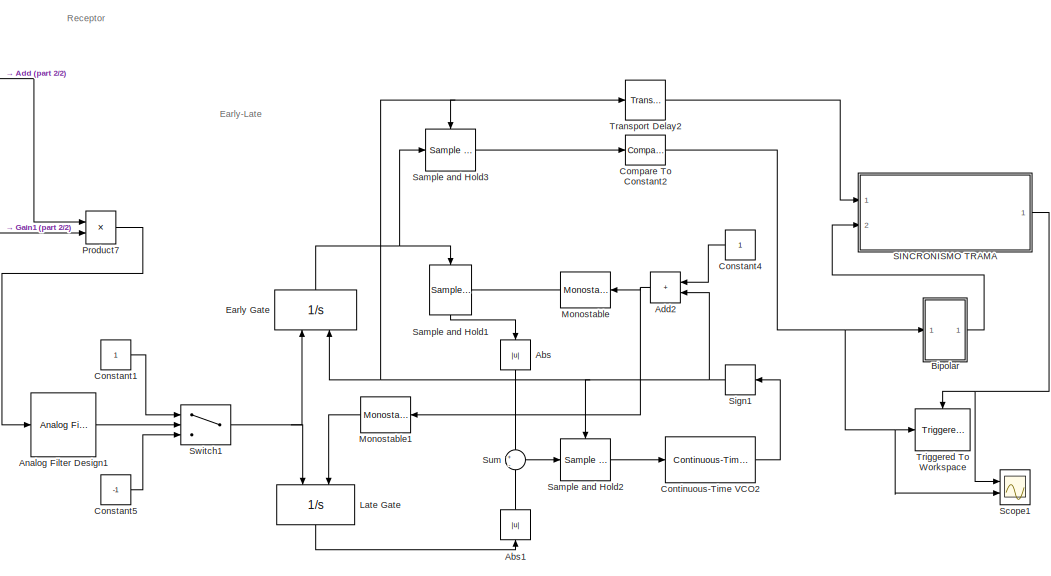
[diagram: root canvas - part 1/2, right side, full height]
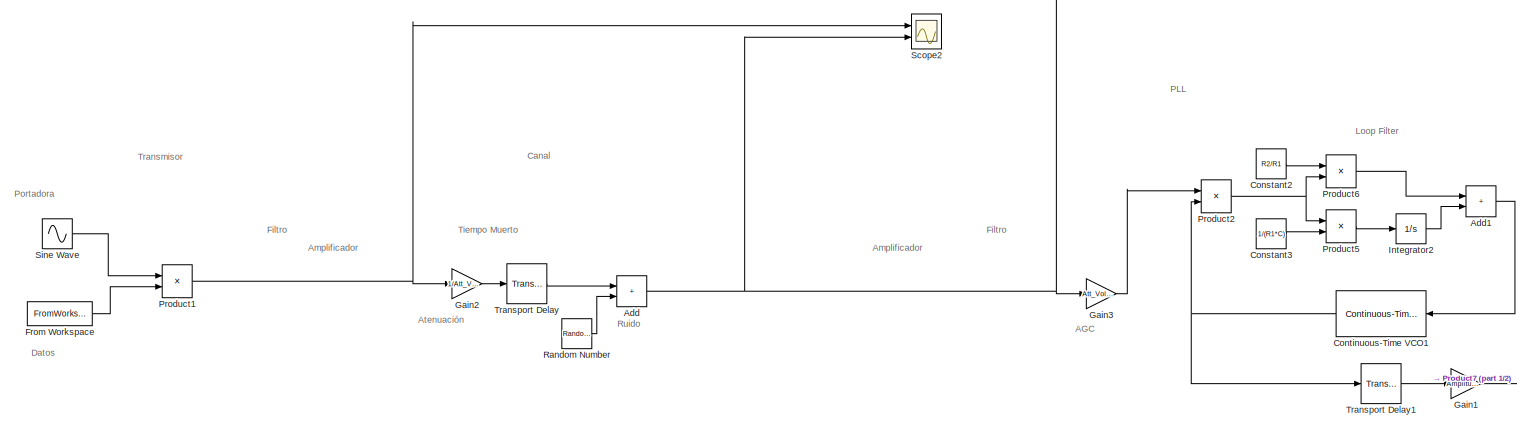
[diagram: root canvas - part 2/2, middle left region]
MODEL slx_01e79e3faf39
KIND model
CONFIG AbsTol = auto
CONFIG EnableMultiTasking = off
CONFIG FixedStep = auto
CONFIG MaxStep = 1e-8
CONFIG MinStep = auto
CONFIG RelTol = 1e-3
CONFIG SampleTimeConstraint = Unconstrained
CONFIG Solver = VariableStepAuto
CONFIG SolverName = VariableStepAuto
CONFIG StartTime = 0.0
CONFIG StopTime = Tsim
BLOCK [Abs] Abs
  NameLocation = left
  SaturateOnIntegerOverflow = off
BLOCK [Abs] Abs1
  NameLocation = right
  SaturateOnIntegerOverflow = off
BLOCK [Sum] Add
  IconShape = rectangular
  Ports = [2, 1]
BLOCK [Sum] Add1
  IconShape = rectangular
  Ports = [2, 1]
BLOCK [Sum] Add2
  IconShape = rectangular
  NameLocation = top
  Ports = [2, 1]
BLOCK [Reference] Analog Filter Design1  REF=dsparch4/Analog
Filter Design
  Ports = [1, 1]
  SourceBlock = dsparch4/Analog\nFilter Design
  SourceProductBaseCode = DS
  SourceType = Analog Filter Design
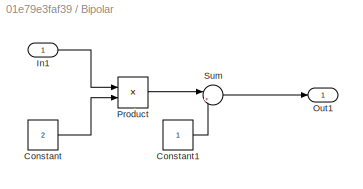
BLOCK [SubSystem] Bipolar 
  Ports = [1, 1]
  RequestExecContextInheritance = off
BLOCK [Constant] Bipolar /Constant
  Value = 2
BLOCK [Constant] Bipolar /Constant1
BLOCK [Inport] Bipolar /In1
BLOCK [Outport] Bipolar /Out1
  VectorParamsAs1DForOutWhenUnconnected = off
BLOCK [Product] Bipolar /Product
  Ports = [2, 1]
BLOCK [Sum] Bipolar /Sum
  Inputs = |+-
  Ports = [2, 1]
BLOCK [Reference] Compare To Constant2  REF=simulink/Logic and Bit
Operations/Compare
To Constant
  Ports = [1, 1]
  SourceBlock = simulink/Logic and Bit\nOperations/Compare\nTo Constant
  SourceProductBaseCode = SL
  SourceType = Compare To Constant
BLOCK [Constant] Constant1
BLOCK [Constant] Constant2
  Value = R2/R1
BLOCK [Constant] Constant3
  Value = 1/(R1*C)
BLOCK [Constant] Constant4
  NameLocation = top
BLOCK [Constant] Constant5
  Value = -1
BLOCK [Reference] Continuous-Time VCO1  REF=commsynccomp2/Continuous-Time
VCO
  NameLocation = top
  Ports = [1, 1]
  SourceBlock = commsynccomp2/Continuous-Time\nVCO
  SourceProductBaseCode = CM
  SourceType = Continuous-Time VCO
BLOCK [Reference] Continuous-Time VCO2  REF=commsynccomp2/Continuous-Time
VCO
  Ports = [1, 1]
  SourceBlock = commsynccomp2/Continuous-Time\nVCO
  SourceProductBaseCode = CM
  SourceType = Continuous-Time VCO
BLOCK [Integrator] Early Gate
  ExternalReset = rising
  NameLocation = left
  Ports = [2, 1]
BLOCK [FromWorkspace] From Workspace
  Interpolate = off
  OutputAfterFinalValue = Holding final value
  SampleTime = Tb
  VariableName = TX
  ZeroCross = off
BLOCK [Gain] Gain1
  Gain = Amplitud/Att_Volt_Canal
BLOCK [Gain] Gain2
  Gain = 1/Att_Volt_Canal
BLOCK [Gain] Gain3
  Gain = Att_Volt_Canal/Amplitud
BLOCK [Integrator] Integrator2
  Ports = [1, 1]
BLOCK [Integrator] Late Gate
  ExternalReset = falling
  NameLocation = left
  Ports = [2, 1]
BLOCK [Reference] Monostable  REF=powerlib_meascontrol/Logic/Monostable
  Ports = [1, 1]
  SourceBlock = powerlib_meascontrol/Logic/Monostable
  SourceProductBaseCode = PS
  SourceType = Monostable
BLOCK [Reference] Monostable1  REF=powerlib_meascontrol/Logic/Monostable
  Ports = [1, 1]
  SourceBlock = powerlib_meascontrol/Logic/Monostable
  SourceProductBaseCode = PS
  SourceType = Monostable
BLOCK [Product] Product1
  Ports = [2, 1]
BLOCK [Product] Product2
  Ports = [2, 1]
BLOCK [Product] Product5
  Ports = [2, 1]
BLOCK [Product] Product6
  Ports = [2, 1]
BLOCK [Product] Product7
  Ports = [2, 1]
BLOCK [RandomNumber] Random Number
  SampleTime = 0.01/(2*Ancho_banda_ruido)
  Variance = Pot_Ruido
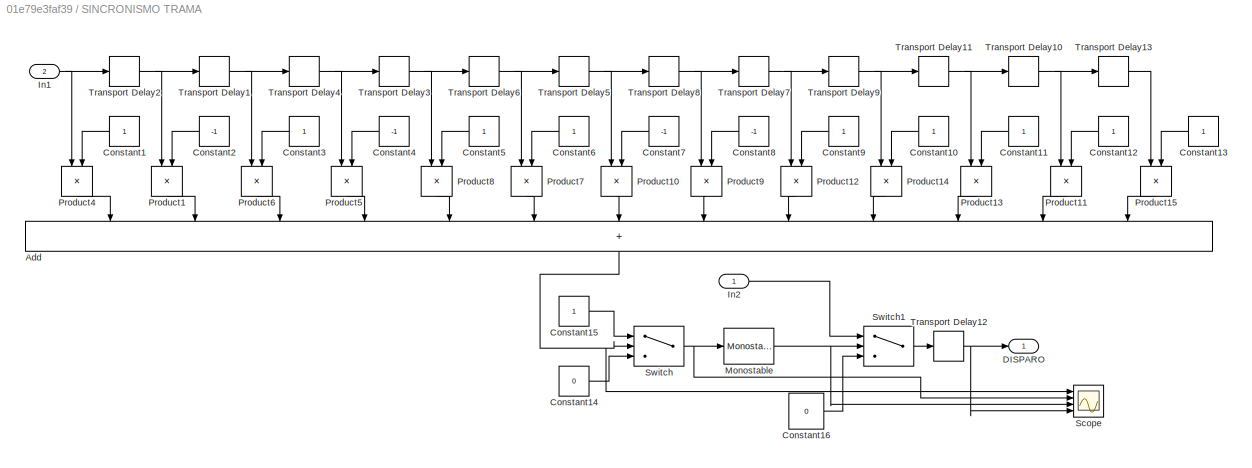
BLOCK [SubSystem] SINCRONISMO TRAMA 
  NameLocation = top
  Ports = [2, 1]
  RequestExecContextInheritance = off
BLOCK [Sum] SINCRONISMO TRAMA /Add
  IconShape = rectangular
  Inputs = +++++++++++++
  NameLocation = left
  Ports = [13, 1]
BLOCK [Constant] SINCRONISMO TRAMA /Constant1
BLOCK [Constant] SINCRONISMO TRAMA /Constant10
BLOCK [Constant] SINCRONISMO TRAMA /Constant11
BLOCK [Constant] SINCRONISMO TRAMA /Constant12
BLOCK [Constant] SINCRONISMO TRAMA /Constant13
BLOCK [Constant] SINCRONISMO TRAMA /Constant14
  Value = 0
BLOCK [Constant] SINCRONISMO TRAMA /Constant15
BLOCK [Constant] SINCRONISMO TRAMA /Constant16
  Value = 0
BLOCK [Constant] SINCRONISMO TRAMA /Constant2
  Value = -1
BLOCK [Constant] SINCRONISMO TRAMA /Constant3
BLOCK [Constant] SINCRONISMO TRAMA /Constant4
  Value = -1
BLOCK [Constant] SINCRONISMO TRAMA /Constant5
BLOCK [Constant] SINCRONISMO TRAMA /Constant6
BLOCK [Constant] SINCRONISMO TRAMA /Constant7
  Value = -1
BLOCK [Constant] SINCRONISMO TRAMA /Constant8
  Value = -1
BLOCK [Constant] SINCRONISMO TRAMA /Constant9
BLOCK [Outport] SINCRONISMO TRAMA /DISPARO 
  VectorParamsAs1DForOutWhenUnconnected = off
BLOCK [Inport] SINCRONISMO TRAMA /In1
  Port = 2
BLOCK [Inport] SINCRONISMO TRAMA /In2
BLOCK [Reference] SINCRONISMO TRAMA /Monostable  REF=powerlib_meascontrol/Logic/Monostable
  Ports = [1, 1]
  SourceBlock = powerlib_meascontrol/Logic/Monostable
  SourceProductBaseCode = PS
  SourceType = Monostable
BLOCK [Product] SINCRONISMO TRAMA /Product1
  NameLocation = left
  Ports = [2, 1]
BLOCK [Product] SINCRONISMO TRAMA /Product10
  NameLocation = left
  Ports = [2, 1]
BLOCK [Product] SINCRONISMO TRAMA /Product11
  NameLocation = left
  Ports = [2, 1]
BLOCK [Product] SINCRONISMO TRAMA /Product12
  NameLocation = left
  Ports = [2, 1]
BLOCK [Product] SINCRONISMO TRAMA /Product13
  NameLocation = left
  Ports = [2, 1]
BLOCK [Product] SINCRONISMO TRAMA /Product14
  NameLocation = left
  Ports = [2, 1]
BLOCK [Product] SINCRONISMO TRAMA /Product15
  NameLocation = left
  Ports = [2, 1]
BLOCK [Product] SINCRONISMO TRAMA /Product4
  NameLocation = left
  Ports = [2, 1]
BLOCK [Product] SINCRONISMO TRAMA /Product5
  NameLocation = left
  Ports = [2, 1]
BLOCK [Product] SINCRONISMO TRAMA /Product6
  NameLocation = left
  Ports = [2, 1]
BLOCK [Product] SINCRONISMO TRAMA /Product7
  NameLocation = left
  Ports = [2, 1]
BLOCK [Product] SINCRONISMO TRAMA /Product8
  NameLocation = left
  Ports = [2, 1]
BLOCK [Product] SINCRONISMO TRAMA /Product9
  NameLocation = left
  Ports = [2, 1]
BLOCK [Scope] SINCRONISMO TRAMA /Scope
  Floating = off
  NumInputPorts = 4
  Ports = [4]
  ScopeSpecificationString = Simulink.scopes.TimeScopeBlockCfg('CurrentConfiguration', extmgr.ConfigurationSet(extmgr.Configuration('Core','General UI',true),extmgr.Configuration('Core','Source UI',true),extmgr.Configuration('Sources','WiredSimulink',true,'DataLoggingVariableName','ScopeData1'),extmgr.Configuration('Visuals','Time Domain',true,'SerializedDisplays',{struct('MinYLimReal','-16.25','MaxYLimReal','16.25','YLabelRe...<+3411ch>
BLOCK [Switch] SINCRONISMO TRAMA /Switch
  InputSameDT = off
  SaturateOnIntegerOverflow = off
  Threshold = 13
BLOCK [Switch] SINCRONISMO TRAMA /Switch1
  Criteria = u2 > Threshold
  InputSameDT = off
  SaturateOnIntegerOverflow = off
BLOCK [TransportDelay] SINCRONISMO TRAMA /Transport Delay1
  DelayTime = Tb
  Ports = [1, 1]
BLOCK [TransportDelay] SINCRONISMO TRAMA /Transport Delay10
  DelayTime = Tb
  Ports = [1, 1]
BLOCK [TransportDelay] SINCRONISMO TRAMA /Transport Delay11
  DelayTime = Tb
  Ports = [1, 1]
BLOCK [TransportDelay] SINCRONISMO TRAMA /Transport Delay12
  DelayTime = Tb
  Ports = [1, 1]
BLOCK [TransportDelay] SINCRONISMO TRAMA /Transport Delay13
  DelayTime = Tb
  Ports = [1, 1]
BLOCK [TransportDelay] SINCRONISMO TRAMA /Transport Delay2
  DelayTime = Tb
  Ports = [1, 1]
BLOCK [TransportDelay] SINCRONISMO TRAMA /Transport Delay3
  DelayTime = Tb
  Ports = [1, 1]
BLOCK [TransportDelay] SINCRONISMO TRAMA /Transport Delay4
  DelayTime = Tb
  Ports = [1, 1]
BLOCK [TransportDelay] SINCRONISMO TRAMA /Transport Delay5
  DelayTime = Tb
  Ports = [1, 1]
BLOCK [TransportDelay] SINCRONISMO TRAMA /Transport Delay6
  DelayTime = Tb
  Ports = [1, 1]
BLOCK [TransportDelay] SINCRONISMO TRAMA /Transport Delay7
  DelayTime = Tb
  Ports = [1, 1]
BLOCK [TransportDelay] SINCRONISMO TRAMA /Transport Delay8
  DelayTime = Tb
  Ports = [1, 1]
BLOCK [TransportDelay] SINCRONISMO TRAMA /Transport Delay9
  DelayTime = Tb
  Ports = [1, 1]
BLOCK [Reference] Sample and Hold1  REF=dspsigops/Sample
and Hold
  NameLocation = left
  Ports = [1, 1, 0, 1]
  SourceBlock = dspsigops/Sample\nand Hold
  SourceProductBaseCode = DS
  SourceType = Sample and Hold
BLOCK [Reference] Sample and Hold2  REF=dspsigops/Sample
and Hold
  Ports = [1, 1, 0, 1]
  SourceBlock = dspsigops/Sample\nand Hold
  SourceProductBaseCode = DS
  SourceType = Sample and Hold
BLOCK [Reference] Sample and Hold3  REF=dspsigops/Sample
and Hold
  Ports = [1, 1, 0, 1]
  SourceBlock = dspsigops/Sample\nand Hold
  SourceProductBaseCode = DS
  SourceType = Sample and Hold
BLOCK [Scope] Scope1
  Floating = off
  NumInputPorts = 2
  Ports = [2]
  ScopeSpecificationString = Simulink.scopes.TimeScopeBlockCfg('CurrentConfiguration', extmgr.ConfigurationSet(extmgr.Configuration('Core','General UI',true),extmgr.Configuration('Core','Source UI',true),extmgr.Configuration('Sources','WiredSimulink',true,'DataLoggingVariableName','ScopeData1'),extmgr.Configuration('Visuals','Time Domain',true,'SerializedDisplays',{struct('MinYLimReal','-1.25','MaxYLimReal','1.25','YLabelReal...<+2061ch>
BLOCK [Scope] Scope2
  Floating = off
  NumInputPorts = 2
  Ports = [2]
  ScopeSpecificationString = Simulink.scopes.TimeScopeBlockCfg('CurrentConfiguration', extmgr.ConfigurationSet(extmgr.Configuration('Core','General UI',true),extmgr.Configuration('Core','Source UI',true),extmgr.Configuration('Sources','WiredSimulink',true,'DataLoggingVariableName','ScopeData1'),extmgr.Configuration('Visuals','Time Domain',true,'SerializedDisplays',{struct('MinYLimReal','-1.5','MaxYLimReal','1.5','YLabelReal',...<+2035ch>
BLOCK [Signum] Sign1
BLOCK [Sin] Sine Wave
  Amplitude = Amplitud
  Frequency = 2*pi*Frec_port
  Ports = [0, 1]
  SampleTime = 0
BLOCK [Sum] Sum
  Inputs = +|-
  Ports = [2, 1]
BLOCK [Switch] Switch1
  Criteria = u2 > Threshold
  InputSameDT = off
  SaturateOnIntegerOverflow = off
  Threshold = 6e-10
BLOCK [TransportDelay] Transport Delay
  DelayTime = Retraso_Canal
  Ports = [1, 1]
BLOCK [TransportDelay] Transport Delay1
  DelayTime = 1/(4*Frec_port)
  Ports = [1, 1]
BLOCK [TransportDelay] Transport Delay2
  DelayTime = 113.83e-6
  Ports = [1, 1]
BLOCK [Reference] Triggered To Workspace  REF=dspsnks4/Triggered
To Workspace
  Ports = [1, 0, 0, 1]
  SourceBlock = dspsnks4/Triggered\nTo Workspace
  SourceProductBaseCode = DS
  SourceType = Triggered To Workspace
  UserDataPersistent = on
ANNOTATION (root): AGC
ANNOTATION (root): Early-Late
ANNOTATION (root): Loop Filter
ANNOTATION (root): PLL
ANNOTATION (root): Canal
ANNOTATION (root): Receptor
ANNOTATION (root): Transmisor
ANNOTATION (root): Amplificador
ANNOTATION (root): Atenuación
ANNOTATION (root): Datos
ANNOTATION (root): Filtro
ANNOTATION (root): Portadora
ANNOTATION (root): Ruido
ANNOTATION (root): Tiempo Muerto
LINE Abs1:1 -> Sum:2
LINE Abs:1 -> Sum:1
LINE Add1:1 -> Continuous-Time VCO1:1
NET Add2:1 -> Monostable1:1, Monostable:1
NET Add:1 -> Gain3:1, Product7:1, Scope2:2
LINE Analog Filter Design1:1 -> Switch1:2
LINE Bipolar /Constant1:1 -> Bipolar /Sum:2
LINE Bipolar /Constant:1 -> Bipolar /Product:2
LINE Bipolar /In1:1 -> Bipolar /Product:1
LINE Bipolar /Product:1 -> Bipolar /Sum:1
LINE Bipolar /Sum:1 -> Bipolar /Out1:1
LINE Bipolar :1 -> SINCRONISMO TRAMA :2
NET Compare To Constant2:1 -> Bipolar :1, Scope1:2, Triggered To Workspace:1
LINE Constant1:1 -> Switch1:1
LINE Constant2:1 -> Product6:1
LINE Constant3:1 -> Product5:2
LINE Constant4:1 -> Add2:1
LINE Constant5:1 -> Switch1:3
NET Continuous-Time VCO1:1 -> Product2:2, Transport Delay1:1
LINE Continuous-Time VCO2:1 -> Sign1:1
NET Early Gate:1 -> Sample and Hold1:1, Sample and Hold3:1
LINE From Workspace:1 -> Product1:2
LINE Gain1:1 -> Product7:2
LINE Gain2:1 -> Transport Delay:1
LINE Gain3:1 -> Product2:1
LINE Integrator2:1 -> Add1:2
LINE Late Gate:1 -> Abs1:1
LINE Monostable1:1 -> Late Gate:2
LINE Monostable:1 -> Sample and Hold1:trigger
NET Product1:1 -> Gain2:1, Scope2:1
NET Product2:1 -> Product5:1, Product6:2
LINE Product5:1 -> Integrator2:1
LINE Product6:1 -> Add1:1
LINE Product7:1 -> Analog Filter Design1:1
LINE Random Number:1 -> Add:2
NET SINCRONISMO TRAMA /Add:1 -> SINCRONISMO TRAMA /Scope:1, SINCRONISMO TRAMA /Switch:2
LINE SINCRONISMO TRAMA /Constant10:1 -> SINCRONISMO TRAMA /Product14:2
LINE SINCRONISMO TRAMA /Constant11:1 -> SINCRONISMO TRAMA /Product13:2
LINE SINCRONISMO TRAMA /Constant12:1 -> SINCRONISMO TRAMA /Product11:2
LINE SINCRONISMO TRAMA /Constant13:1 -> SINCRONISMO TRAMA /Product15:2
LINE SINCRONISMO TRAMA /Constant14:1 -> SINCRONISMO TRAMA /Switch:3
LINE SINCRONISMO TRAMA /Constant15:1 -> SINCRONISMO TRAMA /Switch:1
LINE SINCRONISMO TRAMA /Constant16:1 -> SINCRONISMO TRAMA /Switch1:3
LINE SINCRONISMO TRAMA /Constant1:1 -> SINCRONISMO TRAMA /Product4:2
LINE SINCRONISMO TRAMA /Constant2:1 -> SINCRONISMO TRAMA /Product1:2
LINE SINCRONISMO TRAMA /Constant3:1 -> SINCRONISMO TRAMA /Product6:2
LINE SINCRONISMO TRAMA /Constant4:1 -> SINCRONISMO TRAMA /Product5:2
LINE SINCRONISMO TRAMA /Constant5:1 -> SINCRONISMO TRAMA /Product8:2
LINE SINCRONISMO TRAMA /Constant6:1 -> SINCRONISMO TRAMA /Product7:2
LINE SINCRONISMO TRAMA /Constant7:1 -> SINCRONISMO TRAMA /Product10:2
LINE SINCRONISMO TRAMA /Constant8:1 -> SINCRONISMO TRAMA /Product9:2
LINE SINCRONISMO TRAMA /Constant9:1 -> SINCRONISMO TRAMA /Product12:2
NET SINCRONISMO TRAMA /In1:1 -> SINCRONISMO TRAMA /Product4:1, SINCRONISMO TRAMA /Transport Delay2:1
LINE SINCRONISMO TRAMA /In2:1 -> SINCRONISMO TRAMA /Switch1:1
NET SINCRONISMO TRAMA /Monostable:1 -> SINCRONISMO TRAMA /Scope:3, SINCRONISMO TRAMA /Switch1:2
LINE SINCRONISMO TRAMA /Product10:1 -> SINCRONISMO TRAMA /Add:7
LINE SINCRONISMO TRAMA /Product11:1 -> SINCRONISMO TRAMA /Add:12
LINE SINCRONISMO TRAMA /Product12:1 -> SINCRONISMO TRAMA /Add:9
LINE SINCRONISMO TRAMA /Product13:1 -> SINCRONISMO TRAMA /Add:11
LINE SINCRONISMO TRAMA /Product14:1 -> SINCRONISMO TRAMA /Add:10
LINE SINCRONISMO TRAMA /Product15:1 -> SINCRONISMO TRAMA /Add:13
LINE SINCRONISMO TRAMA /Product1:1 -> SINCRONISMO TRAMA /Add:2
LINE SINCRONISMO TRAMA /Product4:1 -> SINCRONISMO TRAMA /Add:1
LINE SINCRONISMO TRAMA /Product5:1 -> SINCRONISMO TRAMA /Add:4
LINE SINCRONISMO TRAMA /Product6:1 -> SINCRONISMO TRAMA /Add:3
LINE SINCRONISMO TRAMA /Product7:1 -> SINCRONISMO TRAMA /Add:6
LINE SINCRONISMO TRAMA /Product8:1 -> SINCRONISMO TRAMA /Add:5
LINE SINCRONISMO TRAMA /Product9:1 -> SINCRONISMO TRAMA /Add:8
LINE SINCRONISMO TRAMA /Switch1:1 -> SINCRONISMO TRAMA /Transport Delay12:1
NET SINCRONISMO TRAMA /Switch:1 -> SINCRONISMO TRAMA /Monostable:1, SINCRONISMO TRAMA /Scope:2
NET SINCRONISMO TRAMA /Transport Delay10:1 -> SINCRONISMO TRAMA /Product11:1, SINCRONISMO TRAMA /Transport Delay13:1
NET SINCRONISMO TRAMA /Transport Delay11:1 -> SINCRONISMO TRAMA /Product13:1, SINCRONISMO TRAMA /Transport Delay10:1
NET SINCRONISMO TRAMA /Transport Delay12:1 -> SINCRONISMO TRAMA /DISPARO :1, SINCRONISMO TRAMA /Scope:4
LINE SINCRONISMO TRAMA /Transport Delay13:1 -> SINCRONISMO TRAMA /Product15:1
NET SINCRONISMO TRAMA /Transport Delay1:1 -> SINCRONISMO TRAMA /Product6:1, SINCRONISMO TRAMA /Transport Delay4:1
NET SINCRONISMO TRAMA /Transport Delay2:1 -> SINCRONISMO TRAMA /Product1:1, SINCRONISMO TRAMA /Transport Delay1:1
NET SINCRONISMO TRAMA /Transport Delay3:1 -> SINCRONISMO TRAMA /Product8:1, SINCRONISMO TRAMA /Transport Delay6:1
NET SINCRONISMO TRAMA /Transport Delay4:1 -> SINCRONISMO TRAMA /Product5:1, SINCRONISMO TRAMA /Transport Delay3:1
NET SINCRONISMO TRAMA /Transport Delay5:1 -> SINCRONISMO TRAMA /Product10:1, SINCRONISMO TRAMA /Transport Delay8:1
NET SINCRONISMO TRAMA /Transport Delay6:1 -> SINCRONISMO TRAMA /Product7:1, SINCRONISMO TRAMA /Transport Delay5:1
NET SINCRONISMO TRAMA /Transport Delay7:1 -> SINCRONISMO TRAMA /Product12:1, SINCRONISMO TRAMA /Transport Delay9:1
NET SINCRONISMO TRAMA /Transport Delay8:1 -> SINCRONISMO TRAMA /Product9:1, SINCRONISMO TRAMA /Transport Delay7:1
NET SINCRONISMO TRAMA /Transport Delay9:1 -> SINCRONISMO TRAMA /Product14:1, SINCRONISMO TRAMA /Transport Delay11:1
NET SINCRONISMO TRAMA :1 -> Scope1:1, Triggered To Workspace:trigger
LINE Sample and Hold1:1 -> Abs:1
LINE Sample and Hold2:1 -> Continuous-Time VCO2:1
LINE Sample and Hold3:1 -> Compare To Constant2:1
NET Sign1:1 -> Add2:2, Early Gate:2, Sample and Hold2:trigger, Sample and Hold3:trigger, Transport Delay2:1
LINE Sine Wave:1 -> Product1:1
LINE Sum:1 -> Sample and Hold2:1
NET Switch1:1 -> Early Gate:1, Late Gate:1
LINE Transport Delay1:1 -> Gain1:1
LINE Transport Delay2:1 -> SINCRONISMO TRAMA :1
LINE Transport Delay:1 -> Add:1
note: NET lines group one-source signal fan-out (src -> all destinations, sorted); 1:1 wires keep LINE
